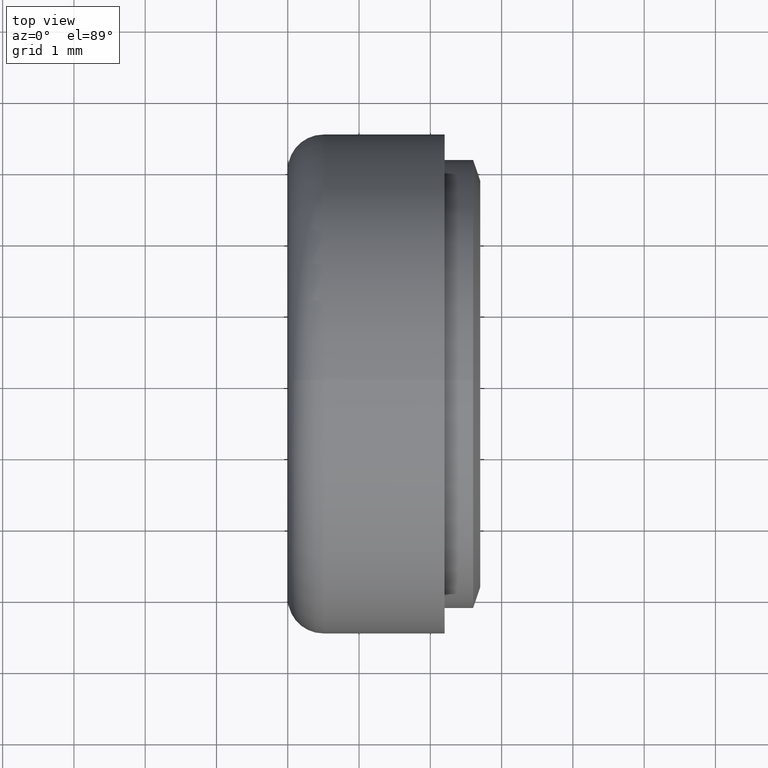
[diagram: clean part render]
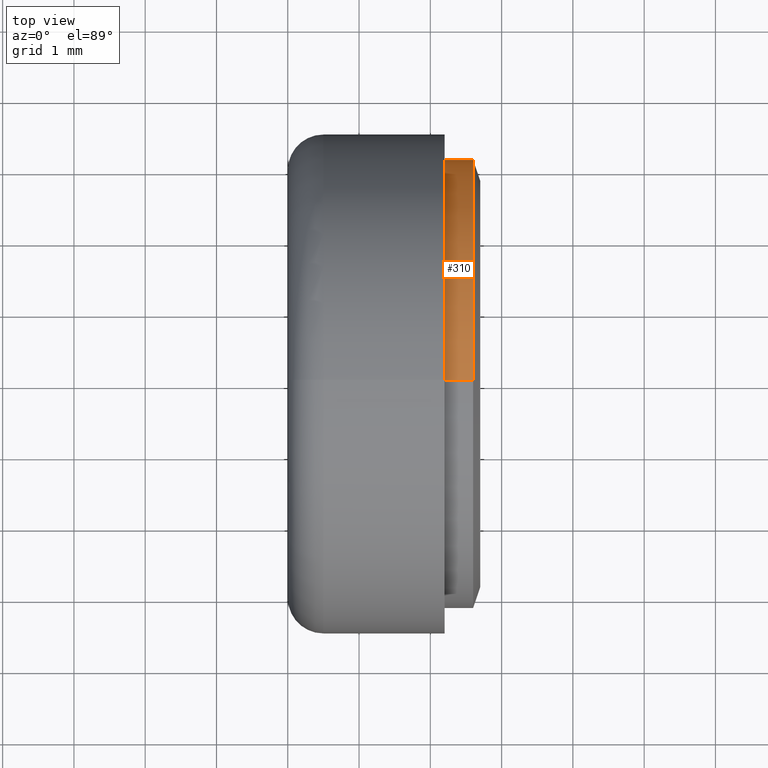
[diagram: same view with one face highlighted and labeled with its STEP entity id]
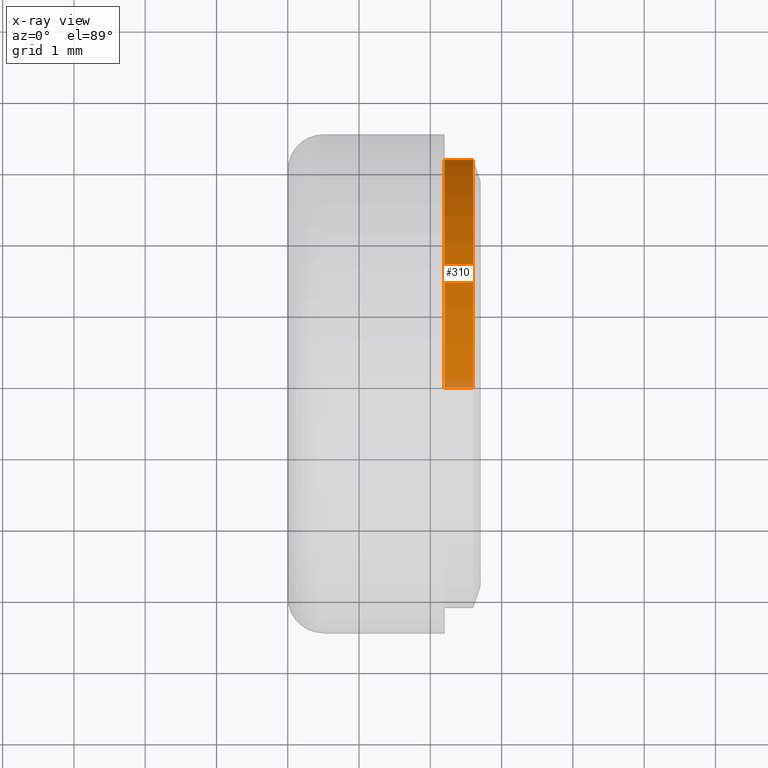
[diagram: x-ray of the same camera — body ghosted, the highlighted face saturated]
A machine part, top view. The second image highlights one B-rep face of the part: STEP entity #310.
The next image is the same camera in x-ray: the body ghosted, the highlighted face saturated — about 3% of this face is hidden behind the body in this view.
In plain terms, the highlighted cylindrical surface (partial cylindrical patch) has radius 3.15 mm, axis along (-1, -0, -0).
Its self-contained STEP definition (entity closure, byte-faithful):
#14 = CARTESIAN_POINT ( 'NONE',  ( -0.1100000000000000700, 0.0000000000000000000, 0.0000000000000000000 ) ) ;
#71 = LINE ( 'NONE', #408, #320 ) ;
#84 = ORIENTED_EDGE ( 'NONE', *, *, #166, .F. ) ;
#92 = DIRECTION ( 'NONE',  ( -1.000000000000000000, -0.0000000000000000000, -0.0000000000000000000 ) ) ;
#102 = EDGE_CURVE ( 'NONE', #691, #178, #292, .T. ) ;
#111 = VERTEX_POINT ( 'NONE', #112 ) ;
#112 = CARTESIAN_POINT ( 'NONE',  ( 2.100000000000001000, 3.857637417314162700E-016, -3.149999999999999900 ) ) ;
#115 = EDGE_LOOP ( 'NONE', ( #641, #643, #371, #84 ) ) ;
#146 = CIRCLE ( 'NONE', #636, 3.149999999999999900 ) ;
#166 = EDGE_CURVE ( 'NONE', #632, #691, #572, .T. ) ;
#178 = VERTEX_POINT ( 'NONE', #222 ) ;
#222 = CARTESIAN_POINT ( 'NONE',  ( 1.700000000000000000, 3.857637417314162700E-016, -3.149999999999999900 ) ) ;
#229 = DIRECTION ( 'NONE',  ( -1.000000000000000000, -0.0000000000000000000, -0.0000000000000000000 ) ) ;
#240 = CARTESIAN_POINT ( 'NONE',  ( 2.100000000000001000, 0.0000000000000000000, 0.0000000000000000000 ) ) ;
#247 = CARTESIAN_POINT ( 'NONE',  ( 1.700000000000000000, 0.0000000000000000000, 3.149999999999999900 ) ) ;
#265 = CYLINDRICAL_SURFACE ( 'NONE', #720, 3.149999999999999900 ) ;
#282 = FACE_OUTER_BOUND ( 'NONE', #115, .T. ) ;
#292 = CIRCLE ( 'NONE', #537, 3.149999999999999900 ) ;
#308 = CARTESIAN_POINT ( 'NONE',  ( 1.700000000000000000, 0.0000000000000000000, 0.0000000000000000000 ) ) ;
#310 = ADVANCED_FACE ( 'NONE', ( #282 ), #265, .T. ) ;
#320 = VECTOR ( 'NONE', #229, 1000.000000000000000 ) ;
#324 = DIRECTION ( 'NONE',  ( 0.0000000000000000000, 0.0000000000000000000, 1.000000000000000000 ) ) ;
#355 = CARTESIAN_POINT ( 'NONE',  ( 2.100000000000001000, 0.0000000000000000000, 3.149999999999999900 ) ) ;
#358 = EDGE_CURVE ( 'NONE', #632, #111, #146, .T. ) ;
#363 = DIRECTION ( 'NONE',  ( 0.0000000000000000000, 0.0000000000000000000, 1.000000000000000000 ) ) ;
#371 = ORIENTED_EDGE ( 'NONE', *, *, #102, .F. ) ;
#401 = DIRECTION ( 'NONE',  ( 0.0000000000000000000, 0.0000000000000000000, 1.000000000000000000 ) ) ;
#408 = CARTESIAN_POINT ( 'NONE',  ( -0.1100000000000000700, 3.857637417314162700E-016, -3.149999999999999900 ) ) ;
#433 = CARTESIAN_POINT ( 'NONE',  ( -0.1100000000000000700, 0.0000000000000000000, 3.149999999999999900 ) ) ;
#444 = DIRECTION ( 'NONE',  ( -1.000000000000000000, -0.0000000000000000000, -0.0000000000000000000 ) ) ;
#498 = EDGE_CURVE ( 'NONE', #111, #178, #71, .T. ) ;
#515 = DIRECTION ( 'NONE',  ( -1.000000000000000000, -0.0000000000000000000, -0.0000000000000000000 ) ) ;
#537 = AXIS2_PLACEMENT_3D ( 'NONE', #308, #92, #363 ) ;
#540 = VECTOR ( 'NONE', #548, 1000.000000000000000 ) ;
#548 = DIRECTION ( 'NONE',  ( -1.000000000000000000, -0.0000000000000000000, -0.0000000000000000000 ) ) ;
#572 = LINE ( 'NONE', #433, #540 ) ;
#632 = VERTEX_POINT ( 'NONE', #355 ) ;
#636 = AXIS2_PLACEMENT_3D ( 'NONE', #240, #444, #401 ) ;
#641 = ORIENTED_EDGE ( 'NONE', *, *, #358, .T. ) ;
#643 = ORIENTED_EDGE ( 'NONE', *, *, #498, .T. ) ;
#691 = VERTEX_POINT ( 'NONE', #247 ) ;
#720 = AXIS2_PLACEMENT_3D ( 'NONE', #14, #515, #324 ) ;